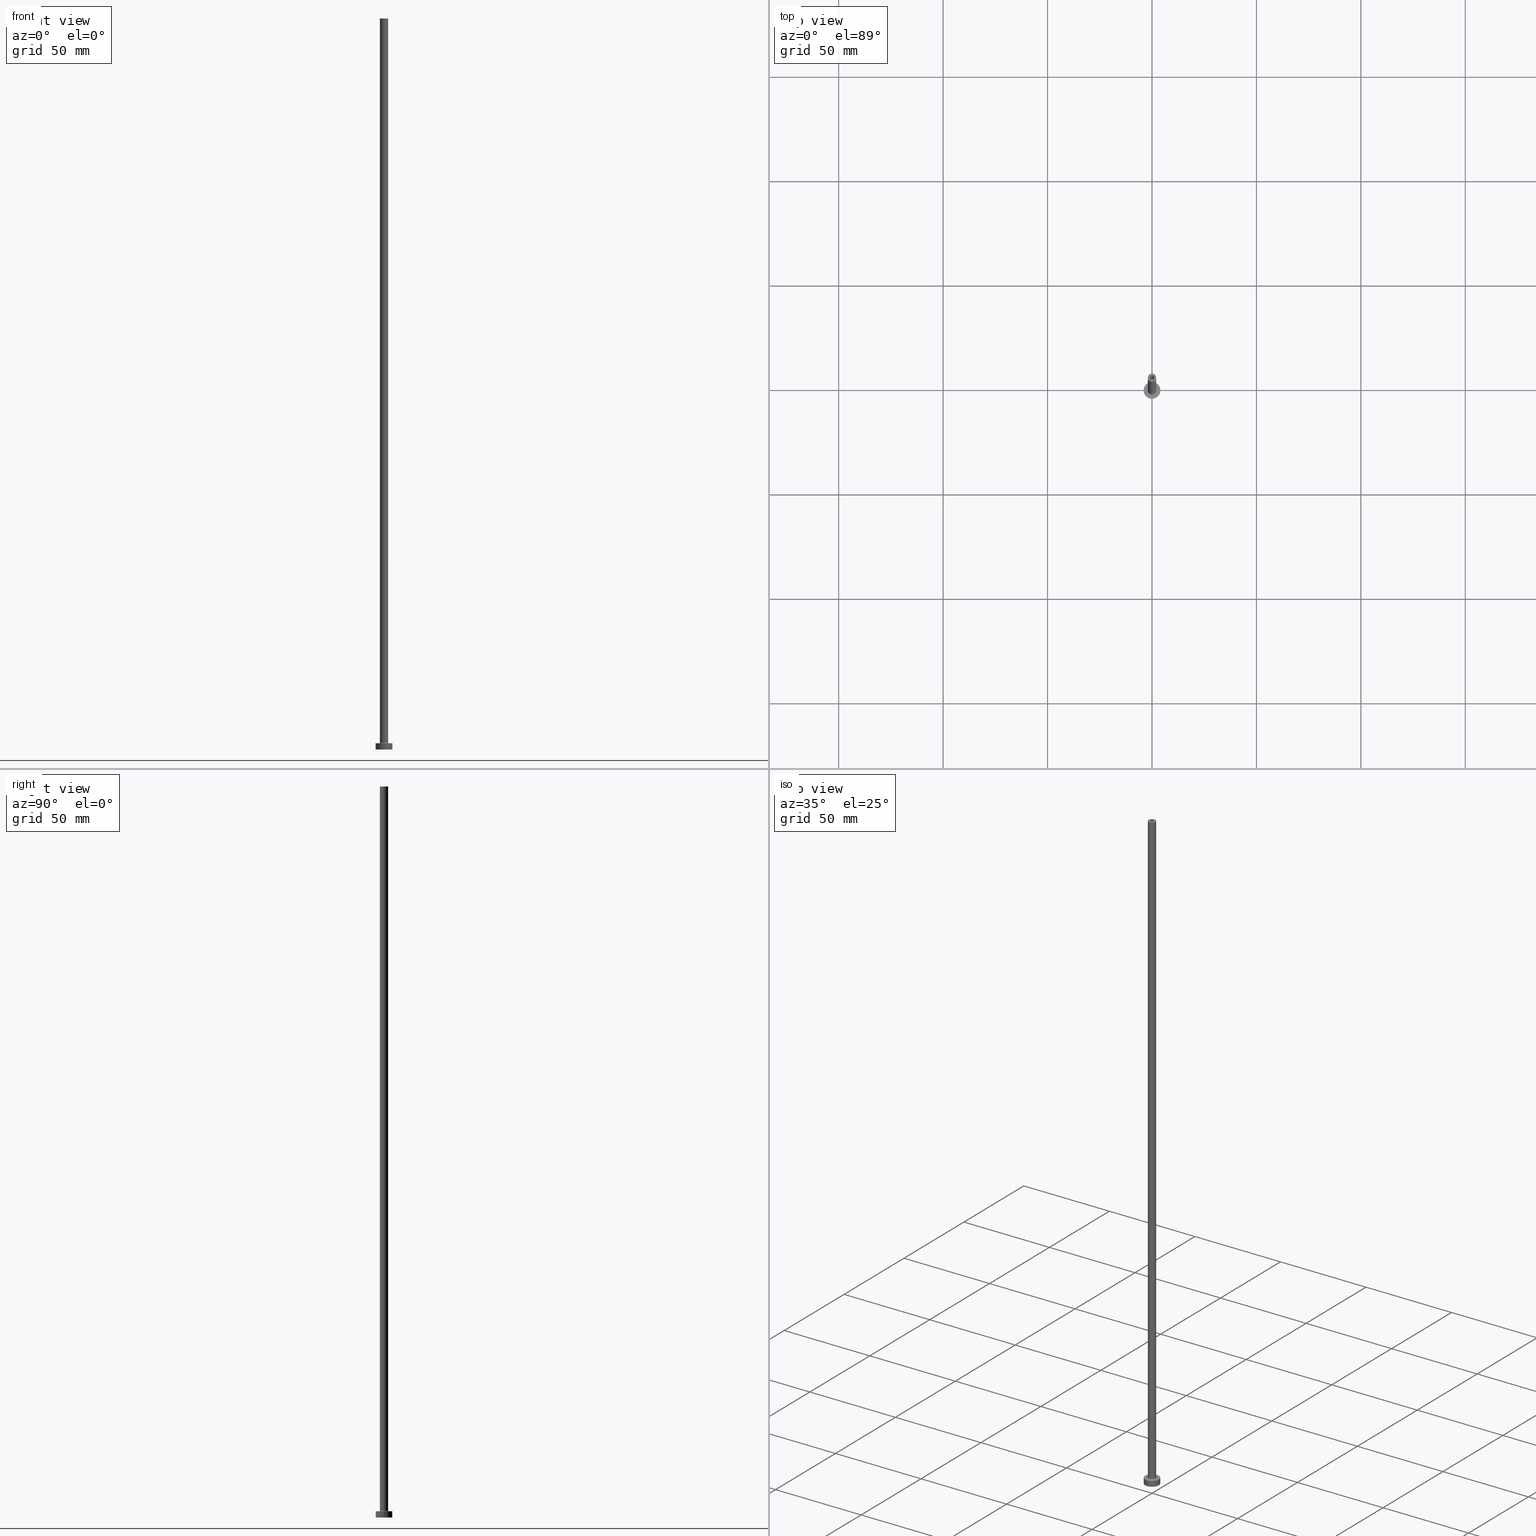
[diagram: canonical four-view strip — front | top / right | iso, engineering-drawing reading convention]
A machine part, canonical four-view strip (front | top / right | iso — engineering-drawing reading convention). The complete STEP part file that produces these views, byte-faithful:
ISO-10303-21;
HEADER;
FILE_DESCRIPTION (( 'STEP AP203' ),
    '1' );
FILE_NAME ('538c.STEP',
    '2023-02-13T18:08:27',
    ( '' ),
    ( '' ),
    'SwSTEP 2.0',
    'SolidWorks 2019',
    '' );
FILE_SCHEMA (( 'CONFIG_CONTROL_DESIGN' ));
ENDSEC;

DATA;
#1 = CARTESIAN_POINT ( 'NONE',  ( 1.250000000000000000, 1.530808498934191571E-16, 0.000000000000000000 ) ) ;
#2 = LOCAL_TIME ( 19, 8, 27.00000000000000000, #221 ) ;
#3 = ORIENTED_EDGE ( 'NONE', *, *, #414, .T. ) ;
#4 = ADVANCED_FACE ( 'NONE', ( #203 ), #163, .T. ) ;
#5 = ORIENTED_EDGE ( 'NONE', *, *, #348, .F. ) ;
#6 = DIRECTION ( 'NONE',  ( 0.000000000000000000, 0.000000000000000000, 1.000000000000000000 ) ) ;
#7 = EDGE_LOOP ( 'NONE', ( #166, #453, #219, #256 ) ) ;
#8 = LOCAL_TIME ( 19, 8, 27.00000000000000000, #406 ) ;
#9 = CALENDAR_DATE ( 2023, 13, 2 ) ;
#10 = PERSON_AND_ORGANIZATION_ROLE ( 'design_owner' ) ;
#11 = EDGE_CURVE ( 'NONE', #84, #257, #158, .T. ) ;
#12 = DIRECTION ( 'NONE',  ( -0.000000000000000000, -0.000000000000000000, -1.000000000000000000 ) ) ;
#13 = VERTEX_POINT ( 'NONE', #118 ) ;
#14 = DIRECTION ( 'NONE',  ( 0.000000000000000000, 0.000000000000000000, 1.000000000000000000 ) ) ;
#15 = DIRECTION ( 'NONE',  ( 0.000000000000000000, 0.000000000000000000, 1.000000000000000000 ) ) ;
#16 = AXIS2_PLACEMENT_3D ( 'NONE', #298, #17, #82 ) ;
#17 = DIRECTION ( 'NONE',  ( -0.000000000000000000, -0.000000000000000000, -1.000000000000000000 ) ) ;
#18 = EDGE_LOOP ( 'NONE', ( #191, #231 ) ) ;
#19 = APPROVAL ( #138, 'NEUR�EN�' ) ;
#20 = DIRECTION ( 'NONE',  ( 1.000000000000000000, 0.000000000000000000, 0.000000000000000000 ) ) ;
#21 = DIRECTION ( 'NONE',  ( 0.000000000000000000, 0.000000000000000000, -1.000000000000000000 ) ) ;
#22 = ORIENTED_EDGE ( 'NONE', *, *, #26, .F. ) ;
#23 = CARTESIAN_POINT ( 'NONE',  ( -4.000000000000000000, 0.000000000000000000, 3.000000000000000000 ) ) ;
#24 = CIRCLE ( 'NONE', #228, 4.000000000000000000 ) ;
#25 = DIRECTION ( 'NONE',  ( -1.000000000000000000, 0.000000000000000000, 0.000000000000000000 ) ) ;
#26 = EDGE_CURVE ( 'NONE', #344, #112, #301, .T. ) ;
#27 = CARTESIAN_POINT ( 'NONE',  ( -1.250000000000000000, 0.000000000000000000, 318.5355339059327093 ) ) ;
#28 = CARTESIAN_POINT ( 'NONE',  ( 0.000000000000000000, 0.000000000000000000, 318.5355339059327093 ) ) ;
#29 = PERSON_AND_ORGANIZATION_ROLE ( 'creator' ) ;
#30 = CARTESIAN_POINT ( 'NONE',  ( 0.000000000000000000, 0.000000000000000000, 0.000000000000000000 ) ) ;
#31 = UNCERTAINTY_MEASURE_WITH_UNIT (LENGTH_MEASURE( 1.000000000000000082E-05 ), #162, 'distance_accuracy_value', 'NONE');
#32 = CARTESIAN_POINT ( 'NONE',  ( -1.100000000000000089, 0.000000000000000000, 314.9999999999999432 ) ) ;
#33 = CC_DESIGN_PERSON_AND_ORGANIZATION_ASSIGNMENT ( #44, #197, ( #200 ) ) ;
#34 = VERTEX_POINT ( 'NONE', #376 ) ;
#35 = DIRECTION ( 'NONE',  ( -1.000000000000000000, 0.000000000000000000, 0.000000000000000000 ) ) ;
#36 = ORIENTED_EDGE ( 'NONE', *, *, #202, .T. ) ;
#37 = DIRECTION ( 'NONE',  ( 1.000000000000000000, 0.000000000000000000, 0.000000000000000000 ) ) ;
#38 = AXIS2_PLACEMENT_3D ( 'NONE', #383, #133, #60 ) ;
#39 = VERTEX_POINT ( 'NONE', #343 ) ;
#40 = EDGE_CURVE ( 'NONE', #34, #341, #425, .T. ) ;
#41 = PERSON_AND_ORGANIZATION ( #278, #131 ) ;
#42 = EDGE_LOOP ( 'NONE', ( #3, #367, #169, #67 ) ) ;
#43 = ORIENTED_EDGE ( 'NONE', *, *, #40, .F. ) ;
#44 = PERSON_AND_ORGANIZATION ( #278, #131 ) ;
#45 = CARTESIAN_POINT ( 'NONE',  ( 1.250000000000000000, 1.530808498934191571E-16, 314.9999999999999432 ) ) ;
#46 = AXIS2_PLACEMENT_3D ( 'NONE', #174, #345, #350 ) ;
#47 = CARTESIAN_POINT ( 'NONE',  ( 4.000000000000000000, 4.898587196589412829E-16, 3.000000000000000000 ) ) ;
#48 = EDGE_CURVE ( 'NONE', #104, #39, #159, .T. ) ;
#49 = AXIS2_PLACEMENT_3D ( 'NONE', #207, #346, #325 ) ;
#50 = EDGE_LOOP ( 'NONE', ( #401, #424, #314, #413 ) ) ;
#51 = ADVANCED_FACE ( 'NONE', ( #303 ), #263, .T. ) ;
#52 = LINE ( 'NONE', #23, #80 ) ;
#53 = LOCAL_TIME ( 19, 8, 27.00000000000000000, #161 ) ;
#54 = DIRECTION ( 'NONE',  ( 1.000000000000000000, 0.000000000000000000, 0.000000000000000000 ) ) ;
#55 = PRODUCT_DEFINITION_FORMATION_WITH_SPECIFIED_SOURCE ( 'LIBOVOLN�', '', #431, .NOT_KNOWN. ) ;
#56 = DIRECTION ( 'NONE',  ( 1.000000000000000000, 0.000000000000000000, 0.000000000000000000 ) ) ;
#57 = APPROVAL ( #108, 'NEUR�EN�' ) ;
#58 = CIRCLE ( 'NONE', #151, 4.000000000000000000 ) ;
#59 = FACE_BOUND ( 'NONE', #18, .T. ) ;
#60 = DIRECTION ( 'NONE',  ( 1.000000000000000000, 0.000000000000000000, 0.000000000000000000 ) ) ;
#61 = PERSON_AND_ORGANIZATION_ROLE ( 'creator' ) ;
#62 = CARTESIAN_POINT ( 'NONE',  ( 0.000000000000000000, 0.000000000000000000, 0.000000000000000000 ) ) ;
#63 = CYLINDRICAL_SURFACE ( 'NONE', #179, 4.000000000000000000 ) ;
#64 = AXIS2_PLACEMENT_3D ( 'NONE', #426, #273, #390 ) ;
#65 = PRODUCT_DEFINITION ( 'NEZN�M�', '', #55, #403 ) ;
#66 = DIRECTION ( 'NONE',  ( 0.000000000000000000, 0.000000000000000000, -1.000000000000000000 ) ) ;
#67 = ORIENTED_EDGE ( 'NONE', *, *, #385, .F. ) ;
#68 = CIRCLE ( 'NONE', #336, 0.2999999999999999334 ) ;
#69 = LINE ( 'NONE', #321, #114 ) ;
#70 = CC_DESIGN_APPROVAL ( #81, ( #65 ) ) ;
#71 = ORIENTED_EDGE ( 'NONE', *, *, #196, .T. ) ;
#72 = DIRECTION ( 'NONE',  ( 0.000000000000000000, 0.000000000000000000, 1.000000000000000000 ) ) ;
#73 = AXIS2_PLACEMENT_3D ( 'NONE', #198, #115, #260 ) ;
#74 = DIRECTION ( 'NONE',  ( -1.000000000000000000, 0.000000000000000000, 0.000000000000000000 ) ) ;
#75 = ORIENTED_EDGE ( 'NONE', *, *, #391, .F. ) ;
#76 = EDGE_CURVE ( 'NONE', #112, #34, #379, .T. ) ;
#77 = CALENDAR_DATE ( 2023, 13, 2 ) ;
#78 = DIRECTION ( 'NONE',  ( -1.000000000000000000, 0.000000000000000000, 0.000000000000000000 ) ) ;
#79 = SHAPE_DEFINITION_REPRESENTATION ( #279, #407 ) ;
#80 = VECTOR ( 'NONE', #238, 1000.000000000000000 ) ;
#81 = APPROVAL ( #438, 'NEUR�EN�' ) ;
#82 = DIRECTION ( 'NONE',  ( 1.000000000000000000, 0.000000000000000000, 0.000000000000000000 ) ) ;
#83 = VECTOR ( 'NONE', #132, 1000.000000000000000 ) ;
#84 = VERTEX_POINT ( 'NONE', #408 ) ;
#85 = DIRECTION ( 'NONE',  ( 0.000000000000000000, 0.000000000000000000, 1.000000000000000000 ) ) ;
#86 = ADVANCED_FACE ( 'NONE', ( #335 ), #333, .F. ) ;
#87 = CARTESIAN_POINT ( 'NONE',  ( 0.000000000000000000, 0.000000000000000000, 3.000000000000000000 ) ) ;
#88 = ORIENTED_EDGE ( 'NONE', *, *, #237, .T. ) ;
#89 = DIRECTION ( 'NONE',  ( 0.000000000000000000, 0.000000000000000000, 1.000000000000000000 ) ) ;
#90 = ORIENTED_EDGE ( 'NONE', *, *, #177, .F. ) ;
#91 = CC_DESIGN_SECURITY_CLASSIFICATION ( #200, ( #55 ) ) ;
#92 = PLANE ( 'NONE',  #156 ) ;
#93 = CYLINDRICAL_SURFACE ( 'NONE', #320, 1.100000000000000089 ) ;
#94 = ORIENTED_EDGE ( 'NONE', *, *, #378, .T. ) ;
#95 = CIRCLE ( 'NONE', #119, 1.250000000000000000 ) ;
#96 = EDGE_CURVE ( 'NONE', #253, #344, #100, .T. ) ;
#97 = FACE_OUTER_BOUND ( 'NONE', #419, .T. ) ;
#98 = CIRCLE ( 'NONE', #243, 2.000000000000000000 ) ;
#99 = CYLINDRICAL_SURFACE ( 'NONE', #441, 1.100000000000000089 ) ;
#100 = CIRCLE ( 'NONE', #445, 2.000000000000000000 ) ;
#101 = ORIENTED_EDGE ( 'NONE', *, *, #76, .F. ) ;
#102 = CARTESIAN_POINT ( 'NONE',  ( 0.000000000000000000, 0.000000000000000000, 3.000000000000000000 ) ) ;
#103 = PLANE ( 'NONE',  #372 ) ;
#104 = VERTEX_POINT ( 'NONE', #282 ) ;
#105 = APPROVAL_DATE_TIME ( #332, #57 ) ;
#106 = FACE_BOUND ( 'NONE', #271, .T. ) ;
#107 = ADVANCED_FACE ( 'NONE', ( #277, #456 ), #458, .T. ) ;
#108 = APPROVAL_STATUS ( 'not_yet_approved' ) ;
#109 = ORIENTED_EDGE ( 'NONE', *, *, #348, .T. ) ;
#110 = APPROVAL_ROLE ( '' ) ;
#111 = VECTOR ( 'NONE', #450, 1000.000000000000000 ) ;
#112 = VERTEX_POINT ( 'NONE', #240 ) ;
#113 = CYLINDRICAL_SURFACE ( 'NONE', #205, 2.000000000000000000 ) ;
#114 = VECTOR ( 'NONE', #356, 1000.000000000000000 ) ;
#115 = DIRECTION ( 'NONE',  ( 0.000000000000000000, 0.000000000000000000, 1.000000000000000000 ) ) ;
#116 = ADVANCED_FACE ( 'NONE', ( #97 ), #210, .F. ) ;
#117 = DIRECTION ( 'NONE',  ( 1.224646799147353207E-16, 1.000000000000000000, -0.000000000000000000 ) ) ;
#118 = CARTESIAN_POINT ( 'NONE',  ( -4.000000000000000000, 0.000000000000000000, 3.000000000000000000 ) ) ;
#119 = AXIS2_PLACEMENT_3D ( 'NONE', #312, #176, #56 ) ;
#120 = CARTESIAN_POINT ( 'NONE',  ( -2.299999999999999822, 2.816687638038912056E-16, 3.300000000000025135 ) ) ;
#121 = CARTESIAN_POINT ( 'NONE',  ( -2.000000000000000000, 0.000000000000000000, 350.0000000000000000 ) ) ;
#122 = DIRECTION ( 'NONE',  ( 1.000000000000000000, 0.000000000000000000, 0.000000000000000000 ) ) ;
#123 = PERSON_AND_ORGANIZATION ( #278, #131 ) ;
#124 = DIRECTION ( 'NONE',  ( 0.000000000000000000, 0.000000000000000000, -1.000000000000000000 ) ) ;
#125 = ORIENTED_EDGE ( 'NONE', *, *, #439, .T. ) ;
#126 = AXIS2_PLACEMENT_3D ( 'NONE', #208, #173, #307 ) ;
#127 = DIRECTION ( 'NONE',  ( 0.000000000000000000, 0.000000000000000000, -1.000000000000000000 ) ) ;
#128 = ORIENTED_EDGE ( 'NONE', *, *, #172, .F. ) ;
#129 = EDGE_LOOP ( 'NONE', ( #194, #430, #347, #399 ) ) ;
#130 = ADVANCED_FACE ( 'NONE', ( #306 ), #93, .F. ) ;
#131 = ORGANIZATION ( 'NEUR�EN�', 'NEUR�EN�', '' ) ;
#132 = DIRECTION ( 'NONE',  ( 0.000000000000000000, 0.000000000000000000, -1.000000000000000000 ) ) ;
#133 = DIRECTION ( 'NONE',  ( 0.000000000000000000, 0.000000000000000000, 1.000000000000000000 ) ) ;
#134 = CIRCLE ( 'NONE', #49, 1.100000000000000089 ) ;
#135 = DIRECTION ( 'NONE',  ( 1.000000000000000000, 0.000000000000000000, 0.000000000000000000 ) ) ;
#136 = ORIENTED_EDGE ( 'NONE', *, *, #373, .F. ) ;
#137 = VECTOR ( 'NONE', #374, 1000.000000000000000 ) ;
#138 = APPROVAL_STATUS ( 'not_yet_approved' ) ;
#139 = CARTESIAN_POINT ( 'NONE',  ( 0.000000000000000000, 0.000000000000000000, 3.000000000000000000 ) ) ;
#140 = EDGE_CURVE ( 'NONE', #459, #328, #95, .T. ) ;
#141 = EDGE_LOOP ( 'NONE', ( #370, #88 ) ) ;
#142 = AXIS2_PLACEMENT_3D ( 'NONE', #30, #436, #283 ) ;
#143 = DIRECTION ( 'NONE',  ( 0.000000000000000000, 0.000000000000000000, 1.000000000000000000 ) ) ;
#144 = DIRECTION ( 'NONE',  ( 1.000000000000000000, 0.000000000000000000, 0.000000000000000000 ) ) ;
#145 = ORIENTED_EDGE ( 'NONE', *, *, #447, .F. ) ;
#146 = CARTESIAN_POINT ( 'NONE',  ( 2.299999999999999822, 0.000000000000000000, 3.000000000000012434 ) ) ;
#147 = VECTOR ( 'NONE', #127, 1000.000000000000000 ) ;
#148 = EDGE_LOOP ( 'NONE', ( #416, #136, #266, #387 ) ) ;
#149 = AXIS2_PLACEMENT_3D ( 'NONE', #352, #386, #204 ) ;
#150 = ORIENTED_EDGE ( 'NONE', *, *, #420, .T. ) ;
#151 = AXIS2_PLACEMENT_3D ( 'NONE', #102, #251, #37 ) ;
#152 = CC_DESIGN_PERSON_AND_ORGANIZATION_ASSIGNMENT ( #354, #29, ( #55 ) ) ;
#153 = DIRECTION ( 'NONE',  ( 1.000000000000000000, 0.000000000000000000, 0.000000000000000000 ) ) ;
#154 = ORIENTED_EDGE ( 'NONE', *, *, #140, .F. ) ;
#155 = APPLICATION_PROTOCOL_DEFINITION ( 'international standard', 'config_control_design', 1994, #412 ) ;
#156 = AXIS2_PLACEMENT_3D ( 'NONE', #239, #215, #384 ) ;
#157 = DIRECTION ( 'NONE',  ( -0.000000000000000000, -0.000000000000000000, -1.000000000000000000 ) ) ;
#158 = CIRCLE ( 'NONE', #418, 1.100000000000000089 ) ;
#159 = LINE ( 'NONE', #47, #111 ) ;
#160 = ADVANCED_FACE ( 'NONE', ( #212 ), #241, .F. ) ;
#161 = COORDINATED_UNIVERSAL_TIME_OFFSET ( 1, 0, .AHEAD. ) ;
#162 =( LENGTH_UNIT ( ) NAMED_UNIT ( * ) SI_UNIT ( .MILLI., .METRE. ) );
#163 = CYLINDRICAL_SURFACE ( 'NONE', #313, 4.000000000000000000 ) ;
#164 = APPROVAL_ROLE ( '' ) ;
#165 = DIRECTION ( 'NONE',  ( -0.000000000000000000, -0.000000000000000000, -1.000000000000000000 ) ) ;
#166 = ORIENTED_EDGE ( 'NONE', *, *, #167, .T. ) ;
#167 = EDGE_CURVE ( 'NONE', #328, #459, #362, .T. ) ;
#168 = CARTESIAN_POINT ( 'NONE',  ( 2.299999999999999822, 0.000000000000000000, 3.300000000000025135 ) ) ;
#169 = ORIENTED_EDGE ( 'NONE', *, *, #265, .F. ) ;
#170 = CARTESIAN_POINT ( 'NONE',  ( 1.250000000000000000, 1.530808498934191571E-16, 318.5355339059327093 ) ) ;
#171 = ORIENTED_EDGE ( 'NONE', *, *, #342, .F. ) ;
#172 = EDGE_CURVE ( 'NONE', #13, #304, #52, .T. ) ;
#173 = DIRECTION ( 'NONE',  ( 0.000000000000000000, 0.000000000000000000, 1.000000000000000000 ) ) ;
#174 = CARTESIAN_POINT ( 'NONE',  ( 0.000000000000000000, 0.000000000000000000, 3.300000000000025135 ) ) ;
#175 =( GEOMETRIC_REPRESENTATION_CONTEXT ( 3 ) GLOBAL_UNCERTAINTY_ASSIGNED_CONTEXT ( ( #31 ) ) GLOBAL_UNIT_ASSIGNED_CONTEXT ( ( #162, #375, #440 ) ) REPRESENTATION_CONTEXT ( 'NONE', 'WORKASPACE' ) );
#176 = DIRECTION ( 'NONE',  ( 0.000000000000000000, 0.000000000000000000, 1.000000000000000000 ) ) ;
#177 = EDGE_CURVE ( 'NONE', #459, #224, #422, .T. ) ;
#178 = CARTESIAN_POINT ( 'NONE',  ( 0.000000000000000000, 0.000000000000000000, 3.300000000000025135 ) ) ;
#179 = AXIS2_PLACEMENT_3D ( 'NONE', #402, #183, #74 ) ;
#180 = DIRECTION ( 'NONE',  ( 0.000000000000000000, 0.000000000000000000, 1.000000000000000000 ) ) ;
#181 = PERSON_AND_ORGANIZATION ( #278, #131 ) ;
#182 = FACE_OUTER_BOUND ( 'NONE', #42, .T. ) ;
#183 = DIRECTION ( 'NONE',  ( -0.000000000000000000, -0.000000000000000000, -1.000000000000000000 ) ) ;
#184 = ORIENTED_EDGE ( 'NONE', *, *, #276, .T. ) ;
#185 = CIRCLE ( 'NONE', #359, 1.100000000000000089 ) ;
#186 = APPROVAL_DATE_TIME ( #392, #19 ) ;
#187 = CARTESIAN_POINT ( 'NONE',  ( 1.100000000000000089, 1.347111479062088503E-16, 314.9999999999999432 ) ) ;
#188 = CARTESIAN_POINT ( 'NONE',  ( 0.000000000000000000, 0.000000000000000000, 350.0000000000000000 ) ) ;
#189 = EDGE_LOOP ( 'NONE', ( #317, #286 ) ) ;
#190 = CC_DESIGN_DATE_AND_TIME_ASSIGNMENT ( #201, #339, ( #200 ) ) ;
#191 = ORIENTED_EDGE ( 'NONE', *, *, #414, .F. ) ;
#192 = AXIS2_PLACEMENT_3D ( 'NONE', #248, #6, #398 ) ;
#193 = LOCAL_TIME ( 19, 8, 27.00000000000000000, #435 ) ;
#194 = ORIENTED_EDGE ( 'NONE', *, *, #297, .F. ) ;
#195 = LINE ( 'NONE', #293, #272 ) ;
#196 = EDGE_CURVE ( 'NONE', #104, #13, #423, .T. ) ;
#197 = PERSON_AND_ORGANIZATION_ROLE ( 'classification_officer' ) ;
#198 = CARTESIAN_POINT ( 'NONE',  ( 0.000000000000000000, 0.000000000000000000, 3.300000000000025135 ) ) ;
#199 = CARTESIAN_POINT ( 'NONE',  ( 0.000000000000000000, 0.000000000000000000, 0.000000000000000000 ) ) ;
#200 = SECURITY_CLASSIFICATION ( '', '', #291 ) ;
#201 = DATE_AND_TIME ( #9, #53 ) ;
#202 = EDGE_CURVE ( 'NONE', #331, #319, #134, .T. ) ;
#203 = FACE_OUTER_BOUND ( 'NONE', #269, .T. ) ;
#204 = DIRECTION ( 'NONE',  ( 1.000000000000000000, 0.000000000000000000, -0.000000000000000000 ) ) ;
#205 = AXIS2_PLACEMENT_3D ( 'NONE', #410, #157, #264 ) ;
#206 = CC_DESIGN_PERSON_AND_ORGANIZATION_ASSIGNMENT ( #181, #315, ( #55 ) ) ;
#207 = CARTESIAN_POINT ( 'NONE',  ( 0.000000000000000000, 0.000000000000000000, 314.9999999999999432 ) ) ;
#208 = CARTESIAN_POINT ( 'NONE',  ( 0.000000000000000000, 0.000000000000000000, 314.9999999999999432 ) ) ;
#209 = CARTESIAN_POINT ( 'NONE',  ( 0.000000000000000000, 0.000000000000000000, 314.9999999999999432 ) ) ;
#210 = TOROIDAL_SURFACE ( 'NONE', #38, 2.299999999999999822, 0.2999999999999999889 ) ;
#211 = CARTESIAN_POINT ( 'NONE',  ( 2.000000000000000000, 2.449293598294706414E-16, 350.0000000000000000 ) ) ;
#212 = FACE_OUTER_BOUND ( 'NONE', #7, .T. ) ;
#213 = CIRCLE ( 'NONE', #226, 2.299999999999999822 ) ;
#214 = CALENDAR_DATE ( 2023, 13, 2 ) ;
#215 = DIRECTION ( 'NONE',  ( 0.000000000000000000, 0.000000000000000000, 1.000000000000000000 ) ) ;
#216 = CARTESIAN_POINT ( 'NONE',  ( 0.000000000000000000, 0.000000000000000000, 350.0000000000000000 ) ) ;
#217 = DIRECTION ( 'NONE',  ( 1.000000000000000000, 0.000000000000000000, 0.000000000000000000 ) ) ;
#218 = AXIS2_PLACEMENT_3D ( 'NONE', #294, #442, #78 ) ;
#219 = ORIENTED_EDGE ( 'NONE', *, *, #391, .T. ) ;
#220 = CIRCLE ( 'NONE', #16, 1.250000000000000000 ) ;
#221 = COORDINATED_UNIVERSAL_TIME_OFFSET ( 1, 0, .AHEAD. ) ;
#222 = CARTESIAN_POINT ( 'NONE',  ( 0.000000000000000000, 0.000000000000000000, 350.0000000000000000 ) ) ;
#223 = CC_DESIGN_PERSON_AND_ORGANIZATION_ASSIGNMENT ( #41, #10, ( #431 ) ) ;
#224 = VERTEX_POINT ( 'NONE', #1 ) ;
#225 = ORIENTED_EDGE ( 'NONE', *, *, #48, .T. ) ;
#226 = AXIS2_PLACEMENT_3D ( 'NONE', #139, #393, #153 ) ;
#227 = ADVANCED_FACE ( 'NONE', ( #322, #433 ), #103, .F. ) ;
#228 = AXIS2_PLACEMENT_3D ( 'NONE', #262, #15, #122 ) ;
#229 = DATE_AND_TIME ( #77, #8 ) ;
#230 = ORIENTED_EDGE ( 'NONE', *, *, #40, .T. ) ;
#231 = ORIENTED_EDGE ( 'NONE', *, *, #11, .F. ) ;
#232 = DIRECTION ( 'NONE',  ( 0.000000000000000000, -1.000000000000000000, 0.000000000000000000 ) ) ;
#233 = ADVANCED_FACE ( 'NONE', ( #254 ), #63, .T. ) ;
#234 = EDGE_LOOP ( 'NONE', ( #90, #357, #184, #150 ) ) ;
#235 = DIRECTION ( 'NONE',  ( 1.000000000000000000, 0.000000000000000000, 0.000000000000000000 ) ) ;
#236 = MANIFOLD_SOLID_BREP ( 'Odebrat vysunut�m4', #292 ) ;
#237 = EDGE_CURVE ( 'NONE', #309, #341, #377, .T. ) ;
#238 = DIRECTION ( 'NONE',  ( -0.000000000000000000, -0.000000000000000000, -1.000000000000000000 ) ) ;
#239 = CARTESIAN_POINT ( 'NONE',  ( 0.000000000000000000, 0.000000000000000000, 350.0000000000000000 ) ) ;
#240 = CARTESIAN_POINT ( 'NONE',  ( -2.000000000000000000, 0.000000000000000000, 3.300000000000025135 ) ) ;
#241 = CYLINDRICAL_SURFACE ( 'NONE', #284, 1.250000000000000000 ) ;
#242 = DATE_AND_TIME ( #214, #193 ) ;
#243 = AXIS2_PLACEMENT_3D ( 'NONE', #178, #143, #217 ) ;
#244 = ADVANCED_FACE ( 'NONE', ( #246 ), #396, .F. ) ;
#245 = PERSON_AND_ORGANIZATION ( #278, #131 ) ;
#246 = FACE_OUTER_BOUND ( 'NONE', #234, .T. ) ;
#247 = EDGE_LOOP ( 'NONE', ( #323, #451, #94, #22 ) ) ;
#248 = CARTESIAN_POINT ( 'NONE',  ( 0.000000000000000000, 0.000000000000000000, 0.000000000000000000 ) ) ;
#249 = ORIENTED_EDGE ( 'NONE', *, *, #265, .T. ) ;
#250 = CIRCLE ( 'NONE', #142, 1.250000000000000000 ) ;
#251 = DIRECTION ( 'NONE',  ( 0.000000000000000000, 0.000000000000000000, 1.000000000000000000 ) ) ;
#252 = LOCAL_TIME ( 19, 8, 27.00000000000000000, #368 ) ;
#253 = VERTEX_POINT ( 'NONE', #211 ) ;
#254 = FACE_OUTER_BOUND ( 'NONE', #50, .T. ) ;
#255 = ADVANCED_FACE ( 'NONE', ( #59, #421 ), #92, .T. ) ;
#256 = ORIENTED_EDGE ( 'NONE', *, *, #276, .F. ) ;
#257 = VERTEX_POINT ( 'NONE', #351 ) ;
#258 = AXIS2_PLACEMENT_3D ( 'NONE', #62, #72, #358 ) ;
#259 = APPROVAL_PERSON_ORGANIZATION ( #245, #19, #280 ) ;
#260 = DIRECTION ( 'NONE',  ( 1.000000000000000000, 0.000000000000000000, 0.000000000000000000 ) ) ;
#261 = APPROVAL_PERSON_ORGANIZATION ( #289, #81, #110 ) ;
#262 = CARTESIAN_POINT ( 'NONE',  ( 0.000000000000000000, 0.000000000000000000, 0.000000000000000000 ) ) ;
#263 = CYLINDRICAL_SURFACE ( 'NONE', #218, 2.000000000000000000 ) ;
#264 = DIRECTION ( 'NONE',  ( -1.000000000000000000, 0.000000000000000000, 0.000000000000000000 ) ) ;
#265 = EDGE_CURVE ( 'NONE', #319, #331, #330, .T. ) ;
#266 = ORIENTED_EDGE ( 'NONE', *, *, #26, .T. ) ;
#267 = EDGE_LOOP ( 'NONE', ( #249, #36 ) ) ;
#268 = AXIS2_PLACEMENT_3D ( 'NONE', #209, #180, #235 ) ;
#269 = EDGE_LOOP ( 'NONE', ( #397, #225, #109, #128 ) ) ;
#270 = CARTESIAN_POINT ( 'NONE',  ( 0.000000000000000000, 0.000000000000000000, 3.000000000000000000 ) ) ;
#271 = EDGE_LOOP ( 'NONE', ( #363, #75 ) ) ;
#272 = VECTOR ( 'NONE', #443, 1000.000000000000000 ) ;
#273 = DIRECTION ( 'NONE',  ( 0.000000000000000000, 0.000000000000000000, -1.000000000000000000 ) ) ;
#274 = DIRECTION ( 'NONE',  ( 0.000000000000000000, 0.000000000000000000, -1.000000000000000000 ) ) ;
#275 = AXIS2_PLACEMENT_3D ( 'NONE', #270, #89, #54 ) ;
#276 = EDGE_CURVE ( 'NONE', #328, #361, #455, .T. ) ;
#277 = FACE_BOUND ( 'NONE', #141, .T. ) ;
#278 = PERSON ( 'NEUR�EN�', 'NEUR�EN�', 'NEUR�EN�', ('NEUR�EN�'), ('NEUR�EN�'), ('NEUR�EN�') ) ;
#279 = PRODUCT_DEFINITION_SHAPE ( 'NONE', 'NONE',  #65 ) ;
#280 = APPROVAL_ROLE ( '' ) ;
#281 = DIRECTION ( 'NONE',  ( 0.000000000000000000, 0.000000000000000000, 1.000000000000000000 ) ) ;
#282 = CARTESIAN_POINT ( 'NONE',  ( 4.000000000000000000, 4.898587196589412829E-16, 3.000000000000000000 ) ) ;
#283 = DIRECTION ( 'NONE',  ( 1.000000000000000000, 0.000000000000000000, 0.000000000000000000 ) ) ;
#284 = AXIS2_PLACEMENT_3D ( 'NONE', #28, #274, #380 ) ;
#285 = EDGE_LOOP ( 'NONE', ( #101, #125, #171, #43 ) ) ;
#286 = ORIENTED_EDGE ( 'NONE', *, *, #96, .T. ) ;
#287 = DIRECTION ( 'NONE',  ( 1.000000000000000000, 0.000000000000000000, 0.000000000000000000 ) ) ;
#288 = ORIENTED_EDGE ( 'NONE', *, *, #355, .T. ) ;
#289 = PERSON_AND_ORGANIZATION ( #278, #131 ) ;
#290 = DIRECTION ( 'NONE',  ( 0.000000000000000000, 0.000000000000000000, 1.000000000000000000 ) ) ;
#291 = SECURITY_CLASSIFICATION_LEVEL ( 'unclassified' ) ;
#292 = CLOSED_SHELL ( 'NONE', ( #405, #160, #86, #51, #4, #233, #107, #364, #457, #255, #116, #244, #227, #130 ) ) ;
#293 = CARTESIAN_POINT ( 'NONE',  ( 2.000000000000000000, 2.449293598294706414E-16, 350.0000000000000000 ) ) ;
#294 = CARTESIAN_POINT ( 'NONE',  ( 0.000000000000000000, 0.000000000000000000, 350.0000000000000000 ) ) ;
#295 = APPLICATION_PROTOCOL_DEFINITION ( 'international standard', 'config_control_design', 1994, #388 ) ;
#296 = CC_DESIGN_APPROVAL ( #57, ( #200 ) ) ;
#297 = EDGE_CURVE ( 'NONE', #84, #331, #302, .T. ) ;
#298 = CARTESIAN_POINT ( 'NONE',  ( 0.000000000000000000, 0.000000000000000000, 0.000000000000000000 ) ) ;
#299 = CARTESIAN_POINT ( 'NONE',  ( 0.000000000000000000, 0.000000000000000000, 350.0000000000000000 ) ) ;
#300 = CALENDAR_DATE ( 2023, 13, 2 ) ;
#301 = LINE ( 'NONE', #121, #137 ) ;
#302 = LINE ( 'NONE', #449, #381 ) ;
#303 = FACE_OUTER_BOUND ( 'NONE', #247, .T. ) ;
#304 = VERTEX_POINT ( 'NONE', #415 ) ;
#305 = AXIS2_PLACEMENT_3D ( 'NONE', #168, #232, #21 ) ;
#306 = FACE_OUTER_BOUND ( 'NONE', #129, .T. ) ;
#307 = DIRECTION ( 'NONE',  ( 1.000000000000000000, 0.000000000000000000, 0.000000000000000000 ) ) ;
#308 = DIRECTION ( 'NONE',  ( 0.000000000000000000, 0.000000000000000000, 1.000000000000000000 ) ) ;
#309 = VERTEX_POINT ( 'NONE', #316 ) ;
#310 = DATE_TIME_ROLE ( 'creation_date' ) ;
#311 = FACE_OUTER_BOUND ( 'NONE', #340, .T. ) ;
#312 = CARTESIAN_POINT ( 'NONE',  ( 0.000000000000000000, 0.000000000000000000, 314.9999999999999432 ) ) ;
#313 = AXIS2_PLACEMENT_3D ( 'NONE', #87, #165, #444 ) ;
#314 = ORIENTED_EDGE ( 'NONE', *, *, #172, .T. ) ;
#315 = PERSON_AND_ORGANIZATION_ROLE ( 'design_supplier' ) ;
#316 = CARTESIAN_POINT ( 'NONE',  ( -2.299999999999999822, 2.816687638038912056E-16, 3.000000000000012434 ) ) ;
#317 = ORIENTED_EDGE ( 'NONE', *, *, #373, .T. ) ;
#318 = CARTESIAN_POINT ( 'NONE',  ( -1.250000000000000000, 0.000000000000000000, 314.9999999999999432 ) ) ;
#319 = VERTEX_POINT ( 'NONE', #32 ) ;
#320 = AXIS2_PLACEMENT_3D ( 'NONE', #216, #454, #25 ) ;
#321 = CARTESIAN_POINT ( 'NONE',  ( -1.100000000000000089, 0.000000000000000000, 350.0000000000000000 ) ) ;
#322 = FACE_BOUND ( 'NONE', #267, .T. ) ;
#323 = ORIENTED_EDGE ( 'NONE', *, *, #96, .F. ) ;
#324 = CARTESIAN_POINT ( 'NONE',  ( -1.250000000000000000, 0.000000000000000000, 0.000000000000000000 ) ) ;
#325 = DIRECTION ( 'NONE',  ( 1.000000000000000000, 0.000000000000000000, 0.000000000000000000 ) ) ;
#326 = AXIS2_PLACEMENT_3D ( 'NONE', #199, #85, #337 ) ;
#327 = CARTESIAN_POINT ( 'NONE',  ( 0.000000000000000000, 0.000000000000000000, 3.000000000000000000 ) ) ;
#328 = VERTEX_POINT ( 'NONE', #318 ) ;
#329 = FACE_OUTER_BOUND ( 'NONE', #148, .T. ) ;
#330 = CIRCLE ( 'NONE', #126, 1.100000000000000089 ) ;
#331 = VERTEX_POINT ( 'NONE', #187 ) ;
#332 = DATE_AND_TIME ( #300, #252 ) ;
#333 = TOROIDAL_SURFACE ( 'NONE', #46, 2.299999999999999822, 0.2999999999999999889 ) ;
#334 = DIRECTION ( 'NONE',  ( -1.000000000000000000, 1.224646799147353207E-16, 0.000000000000000000 ) ) ;
#335 = FACE_OUTER_BOUND ( 'NONE', #285, .T. ) ;
#336 = AXIS2_PLACEMENT_3D ( 'NONE', #120, #117, #334 ) ;
#337 = DIRECTION ( 'NONE',  ( 1.000000000000000000, 0.000000000000000000, 0.000000000000000000 ) ) ;
#338 = ORIENTED_EDGE ( 'NONE', *, *, #167, .F. ) ;
#339 = DATE_TIME_ROLE ( 'classification_date' ) ;
#340 = EDGE_LOOP ( 'NONE', ( #145, #5 ) ) ;
#341 = VERTEX_POINT ( 'NONE', #146 ) ;
#342 = EDGE_CURVE ( 'NONE', #341, #309, #213, .T. ) ;
#343 = CARTESIAN_POINT ( 'NONE',  ( 4.000000000000000000, 4.898587196589412829E-16, 0.000000000000000000 ) ) ;
#344 = VERTEX_POINT ( 'NONE', #461 ) ;
#345 = DIRECTION ( 'NONE',  ( 0.000000000000000000, 0.000000000000000000, 1.000000000000000000 ) ) ;
#346 = DIRECTION ( 'NONE',  ( 0.000000000000000000, 0.000000000000000000, 1.000000000000000000 ) ) ;
#347 = ORIENTED_EDGE ( 'NONE', *, *, #385, .T. ) ;
#348 = EDGE_CURVE ( 'NONE', #39, #304, #349, .T. ) ;
#349 = CIRCLE ( 'NONE', #258, 4.000000000000000000 ) ;
#350 = DIRECTION ( 'NONE',  ( 1.000000000000000000, 0.000000000000000000, 0.000000000000000000 ) ) ;
#351 = CARTESIAN_POINT ( 'NONE',  ( -1.100000000000000089, 0.000000000000000000, 350.0000000000000000 ) ) ;
#352 = CARTESIAN_POINT ( 'NONE',  ( 0.000000000000000000, 0.000000000000000000, 3.000000000000000000 ) ) ;
#353 = AXIS2_PLACEMENT_3D ( 'NONE', #327, #12, #144 ) ;
#354 = PERSON_AND_ORGANIZATION ( #278, #131 ) ;
#355 = EDGE_CURVE ( 'NONE', #13, #104, #58, .T. ) ;
#356 = DIRECTION ( 'NONE',  ( 0.000000000000000000, 0.000000000000000000, -1.000000000000000000 ) ) ;
#357 = ORIENTED_EDGE ( 'NONE', *, *, #140, .T. ) ;
#358 = DIRECTION ( 'NONE',  ( 1.000000000000000000, 0.000000000000000000, 0.000000000000000000 ) ) ;
#359 = AXIS2_PLACEMENT_3D ( 'NONE', #188, #411, #404 ) ;
#360 = ORIENTED_EDGE ( 'NONE', *, *, #439, .F. ) ;
#361 = VERTEX_POINT ( 'NONE', #324 ) ;
#362 = CIRCLE ( 'NONE', #268, 1.250000000000000000 ) ;
#363 = ORIENTED_EDGE ( 'NONE', *, *, #420, .F. ) ;
#364 = ADVANCED_FACE ( 'NONE', ( #106, #311 ), #395, .F. ) ;
#365 = CARTESIAN_POINT ( 'NONE',  ( 0.000000000000000000, 0.000000000000000000, 350.0000000000000000 ) ) ;
#366 = CARTESIAN_POINT ( 'NONE',  ( 0.000000000000000000, 0.000000000000000000, 314.9999999999999432 ) ) ;
#367 = ORIENTED_EDGE ( 'NONE', *, *, #297, .T. ) ;
#368 = COORDINATED_UNIVERSAL_TIME_OFFSET ( 1, 0, .AHEAD. ) ;
#369 = PRODUCT_RELATED_PRODUCT_CATEGORY ( 'detail', '', ( #431 ) ) ;
#370 = ORIENTED_EDGE ( 'NONE', *, *, #342, .T. ) ;
#371 = APPROVAL_DATE_TIME ( #229, #81 ) ;
#372 = AXIS2_PLACEMENT_3D ( 'NONE', #366, #290, #394 ) ;
#373 = EDGE_CURVE ( 'NONE', #344, #253, #460, .T. ) ;
#374 = DIRECTION ( 'NONE',  ( -0.000000000000000000, -0.000000000000000000, -1.000000000000000000 ) ) ;
#375 =( NAMED_UNIT ( * ) PLANE_ANGLE_UNIT ( ) SI_UNIT ( $, .RADIAN. ) );
#376 = CARTESIAN_POINT ( 'NONE',  ( 2.000000000000000000, 2.449293598294706414E-16, 3.300000000000025135 ) ) ;
#377 = CIRCLE ( 'NONE', #353, 2.299999999999999822 ) ;
#378 = EDGE_CURVE ( 'NONE', #34, #112, #98, .T. ) ;
#379 = CIRCLE ( 'NONE', #73, 2.000000000000000000 ) ;
#380 = DIRECTION ( 'NONE',  ( -1.000000000000000000, 0.000000000000000000, 0.000000000000000000 ) ) ;
#381 = VECTOR ( 'NONE', #124, 1000.000000000000000 ) ;
#382 = APPROVAL_PERSON_ORGANIZATION ( #409, #57, #164 ) ;
#383 = CARTESIAN_POINT ( 'NONE',  ( 0.000000000000000000, 0.000000000000000000, 3.300000000000025135 ) ) ;
#384 = DIRECTION ( 'NONE',  ( 1.000000000000000000, 0.000000000000000000, -0.000000000000000000 ) ) ;
#385 = EDGE_CURVE ( 'NONE', #257, #319, #69, .T. ) ;
#386 = DIRECTION ( 'NONE',  ( 0.000000000000000000, 0.000000000000000000, 1.000000000000000000 ) ) ;
#387 = ORIENTED_EDGE ( 'NONE', *, *, #76, .T. ) ;
#388 = APPLICATION_CONTEXT ( 'configuration controlled 3d designs of mechanical parts and assemblies' ) ;
#389 = CARTESIAN_POINT ( 'NONE',  ( 0.000000000000000000, 0.000000000000000000, 350.0000000000000000 ) ) ;
#390 = DIRECTION ( 'NONE',  ( -1.000000000000000000, 0.000000000000000000, 0.000000000000000000 ) ) ;
#391 = EDGE_CURVE ( 'NONE', #224, #361, #250, .T. ) ;
#392 = DATE_AND_TIME ( #428, #2 ) ;
#393 = DIRECTION ( 'NONE',  ( -0.000000000000000000, -0.000000000000000000, -1.000000000000000000 ) ) ;
#394 = DIRECTION ( 'NONE',  ( 1.000000000000000000, 0.000000000000000000, -0.000000000000000000 ) ) ;
#395 = PLANE ( 'NONE',  #192 ) ;
#396 = CYLINDRICAL_SURFACE ( 'NONE', #64, 1.250000000000000000 ) ;
#397 = ORIENTED_EDGE ( 'NONE', *, *, #196, .F. ) ;
#398 = DIRECTION ( 'NONE',  ( 1.000000000000000000, 0.000000000000000000, -0.000000000000000000 ) ) ;
#399 = ORIENTED_EDGE ( 'NONE', *, *, #202, .F. ) ;
#400 = CC_DESIGN_APPROVAL ( #19, ( #55 ) ) ;
#401 = ORIENTED_EDGE ( 'NONE', *, *, #48, .F. ) ;
#402 = CARTESIAN_POINT ( 'NONE',  ( 0.000000000000000000, 0.000000000000000000, 3.000000000000000000 ) ) ;
#403 = DESIGN_CONTEXT ( 'detailed design', #412, 'design' ) ;
#404 = DIRECTION ( 'NONE',  ( 1.000000000000000000, 0.000000000000000000, 0.000000000000000000 ) ) ;
#405 = ADVANCED_FACE ( 'NONE', ( #182 ), #99, .F. ) ;
#406 = COORDINATED_UNIVERSAL_TIME_OFFSET ( 1, 0, .AHEAD. ) ;
#407 = ADVANCED_BREP_SHAPE_REPRESENTATION ( '538c', ( #236, #326 ), #175 ) ;
#408 = CARTESIAN_POINT ( 'NONE',  ( 1.100000000000000089, 1.347111479062088503E-16, 350.0000000000000000 ) ) ;
#409 = PERSON_AND_ORGANIZATION ( #278, #131 ) ;
#410 = CARTESIAN_POINT ( 'NONE',  ( 0.000000000000000000, 0.000000000000000000, 350.0000000000000000 ) ) ;
#411 = DIRECTION ( 'NONE',  ( 0.000000000000000000, 0.000000000000000000, 1.000000000000000000 ) ) ;
#412 = APPLICATION_CONTEXT ( 'configuration controlled 3d designs of mechanical parts and assemblies' ) ;
#413 = ORIENTED_EDGE ( 'NONE', *, *, #447, .T. ) ;
#414 = EDGE_CURVE ( 'NONE', #257, #84, #185, .T. ) ;
#415 = CARTESIAN_POINT ( 'NONE',  ( -4.000000000000000000, 0.000000000000000000, 0.000000000000000000 ) ) ;
#416 = ORIENTED_EDGE ( 'NONE', *, *, #427, .F. ) ;
#417 = EDGE_LOOP ( 'NONE', ( #288, #71 ) ) ;
#418 = AXIS2_PLACEMENT_3D ( 'NONE', #299, #14, #20 ) ;
#419 = EDGE_LOOP ( 'NONE', ( #360, #429, #230, #434 ) ) ;
#420 = EDGE_CURVE ( 'NONE', #361, #224, #220, .T. ) ;
#421 = FACE_OUTER_BOUND ( 'NONE', #189, .T. ) ;
#422 = LINE ( 'NONE', #170, #147 ) ;
#423 = CIRCLE ( 'NONE', #275, 4.000000000000000000 ) ;
#424 = ORIENTED_EDGE ( 'NONE', *, *, #355, .F. ) ;
#425 = CIRCLE ( 'NONE', #305, 0.2999999999999999334 ) ;
#426 = CARTESIAN_POINT ( 'NONE',  ( 0.000000000000000000, 0.000000000000000000, 318.5355339059327093 ) ) ;
#427 = EDGE_CURVE ( 'NONE', #253, #34, #195, .T. ) ;
#428 = CALENDAR_DATE ( 2023, 13, 2 ) ;
#429 = ORIENTED_EDGE ( 'NONE', *, *, #378, .F. ) ;
#430 = ORIENTED_EDGE ( 'NONE', *, *, #11, .T. ) ;
#431 = PRODUCT ( '538c', '538c', '', ( #446 ) ) ;
#432 = CC_DESIGN_PERSON_AND_ORGANIZATION_ASSIGNMENT ( #123, #61, ( #65 ) ) ;
#433 = FACE_OUTER_BOUND ( 'NONE', #437, .T. ) ;
#434 = ORIENTED_EDGE ( 'NONE', *, *, #237, .F. ) ;
#435 = COORDINATED_UNIVERSAL_TIME_OFFSET ( 1, 0, .AHEAD. ) ;
#436 = DIRECTION ( 'NONE',  ( -0.000000000000000000, -0.000000000000000000, -1.000000000000000000 ) ) ;
#437 = EDGE_LOOP ( 'NONE', ( #338, #154 ) ) ;
#438 = APPROVAL_STATUS ( 'not_yet_approved' ) ;
#439 = EDGE_CURVE ( 'NONE', #112, #309, #68, .T. ) ;
#440 =( NAMED_UNIT ( * ) SI_UNIT ( $, .STERADIAN. ) SOLID_ANGLE_UNIT ( ) );
#441 = AXIS2_PLACEMENT_3D ( 'NONE', #222, #66, #35 ) ;
#442 = DIRECTION ( 'NONE',  ( -0.000000000000000000, -0.000000000000000000, -1.000000000000000000 ) ) ;
#443 = DIRECTION ( 'NONE',  ( -0.000000000000000000, -0.000000000000000000, -1.000000000000000000 ) ) ;
#444 = DIRECTION ( 'NONE',  ( -1.000000000000000000, 0.000000000000000000, 0.000000000000000000 ) ) ;
#445 = AXIS2_PLACEMENT_3D ( 'NONE', #389, #308, #135 ) ;
#446 = MECHANICAL_CONTEXT ( 'NONE', #388, 'mechanical' ) ;
#447 = EDGE_CURVE ( 'NONE', #304, #39, #24, .T. ) ;
#448 = AXIS2_PLACEMENT_3D ( 'NONE', #365, #281, #287 ) ;
#449 = CARTESIAN_POINT ( 'NONE',  ( 1.100000000000000089, 1.347111479062088503E-16, 350.0000000000000000 ) ) ;
#450 = DIRECTION ( 'NONE',  ( -0.000000000000000000, -0.000000000000000000, -1.000000000000000000 ) ) ;
#451 = ORIENTED_EDGE ( 'NONE', *, *, #427, .T. ) ;
#452 = CC_DESIGN_DATE_AND_TIME_ASSIGNMENT ( #242, #310, ( #65 ) ) ;
#453 = ORIENTED_EDGE ( 'NONE', *, *, #177, .T. ) ;
#454 = DIRECTION ( 'NONE',  ( 0.000000000000000000, 0.000000000000000000, -1.000000000000000000 ) ) ;
#455 = LINE ( 'NONE', #27, #83 ) ;
#456 = FACE_OUTER_BOUND ( 'NONE', #417, .T. ) ;
#457 = ADVANCED_FACE ( 'NONE', ( #329 ), #113, .T. ) ;
#458 = PLANE ( 'NONE',  #149 ) ;
#459 = VERTEX_POINT ( 'NONE', #45 ) ;
#460 = CIRCLE ( 'NONE', #448, 2.000000000000000000 ) ;
#461 = CARTESIAN_POINT ( 'NONE',  ( -2.000000000000000000, 0.000000000000000000, 350.0000000000000000 ) ) ;
ENDSEC;
END-ISO-10303-21;
